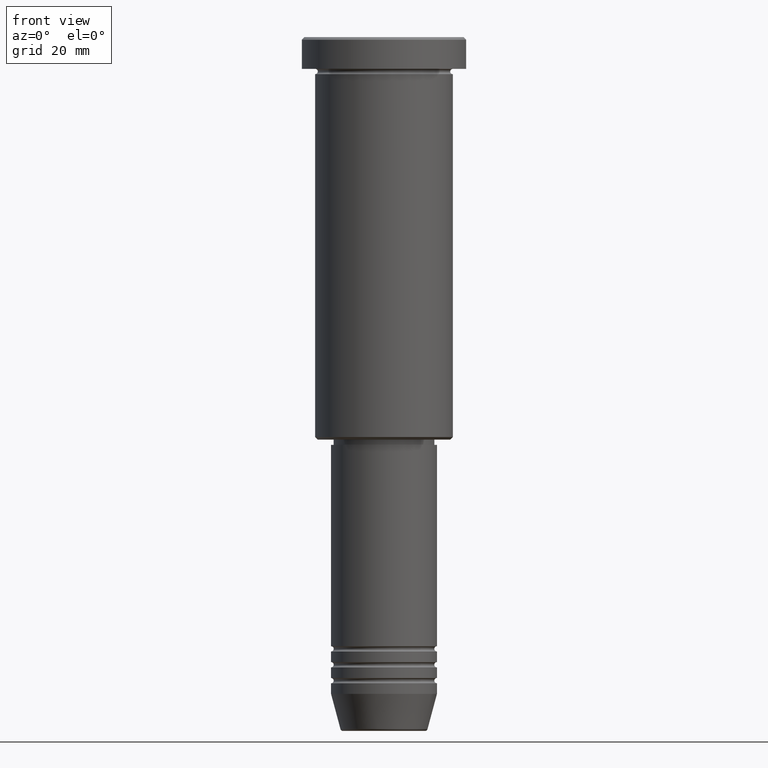
[diagram: clean part render]
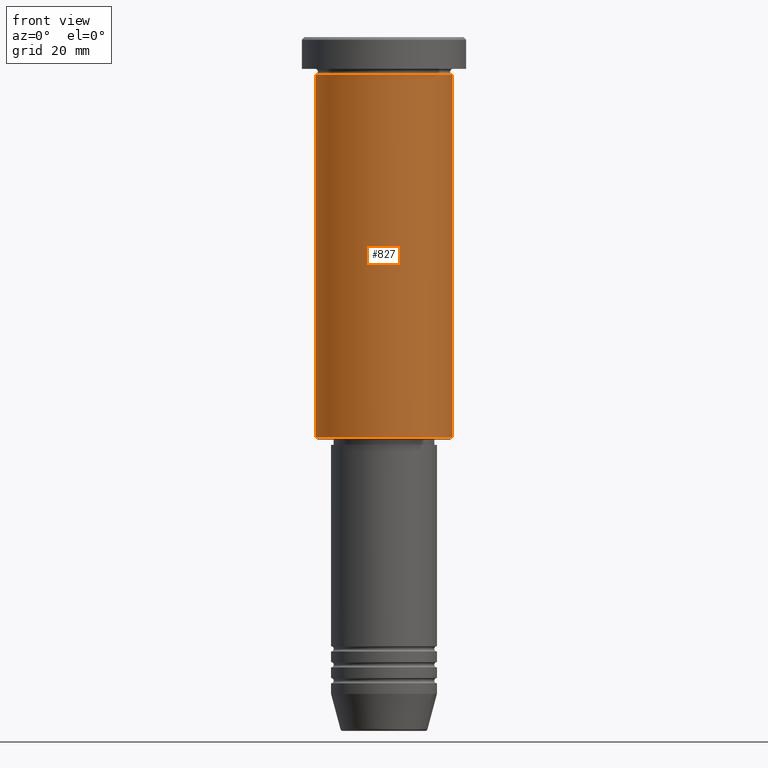
[diagram: same view with one face highlighted and labeled with its STEP entity id]
A machine part, front view. The second image highlights one B-rep face of the part: STEP entity #827.
In plain terms, the highlighted cylindrical surface (partial cylindrical patch) has radius 13 mm, axis along (-0, -0, 1).
Its self-contained STEP definition (entity closure, byte-faithful):
#8 = VECTOR ( 'NONE', #361, 1000.000000000000000 ) ;
#55 = DIRECTION ( 'NONE',  ( -0.000000000000000000, -0.000000000000000000, 1.000000000000000000 ) ) ;
#103 = FACE_OUTER_BOUND ( 'NONE', #419, .T. ) ;
#107 = LINE ( 'NONE', #662, #8 ) ;
#135 = ORIENTED_EDGE ( 'NONE', *, *, #1159, .F. ) ;
#140 = CIRCLE ( 'NONE', #546, 13.00000000000000000 ) ;
#229 = CARTESIAN_POINT ( 'NONE',  ( 13.00000000000000000, 0.000000000000000000, -75.49999999999997158 ) ) ;
#231 = ORIENTED_EDGE ( 'NONE', *, *, #535, .T. ) ;
#276 = DIRECTION ( 'NONE',  ( -0.000000000000000000, -0.000000000000000000, 1.000000000000000000 ) ) ;
#283 = CYLINDRICAL_SURFACE ( 'NONE', #1065, 13.00000000000000000 ) ;
#312 = CIRCLE ( 'NONE', #421, 13.00000000000000000 ) ;
#361 = DIRECTION ( 'NONE',  ( -0.000000000000000000, -0.000000000000000000, 1.000000000000000000 ) ) ;
#371 = VERTEX_POINT ( 'NONE', #229 ) ;
#391 = CARTESIAN_POINT ( 'NONE',  ( -13.00000000000000000, 1.592040838891559095E-15, -75.49999999999997158 ) ) ;
#394 = VERTEX_POINT ( 'NONE', #1029 ) ;
#417 = ORIENTED_EDGE ( 'NONE', *, *, #814, .F. ) ;
#419 = EDGE_LOOP ( 'NONE', ( #417, #231, #441, #135 ) ) ;
#421 = AXIS2_PLACEMENT_3D ( 'NONE', #536, #547, #910 ) ;
#441 = ORIENTED_EDGE ( 'NONE', *, *, #972, .T. ) ;
#522 = VECTOR ( 'NONE', #55, 1000.000000000000000 ) ;
#532 = CARTESIAN_POINT ( 'NONE',  ( 13.00000000000000000, 0.000000000000000000, 0.000000000000000000 ) ) ;
#535 = EDGE_CURVE ( 'NONE', #572, #371, #312, .T. ) ;
#536 = CARTESIAN_POINT ( 'NONE',  ( 0.000000000000000000, 0.000000000000000000, -75.49999999999997158 ) ) ;
#546 = AXIS2_PLACEMENT_3D ( 'NONE', #652, #276, #748 ) ;
#547 = DIRECTION ( 'NONE',  ( -0.000000000000000000, -0.000000000000000000, 1.000000000000000000 ) ) ;
#572 = VERTEX_POINT ( 'NONE', #391 ) ;
#593 = VERTEX_POINT ( 'NONE', #943 ) ;
#652 = CARTESIAN_POINT ( 'NONE',  ( 0.000000000000000000, 0.000000000000000000, -6.999999999999995559 ) ) ;
#654 = DIRECTION ( 'NONE',  ( 1.000000000000000000, 0.000000000000000000, 0.000000000000000000 ) ) ;
#662 = CARTESIAN_POINT ( 'NONE',  ( -13.00000000000000000, 1.592040838891559095E-15, 0.000000000000000000 ) ) ;
#748 = DIRECTION ( 'NONE',  ( 1.000000000000000000, 0.000000000000000000, 0.000000000000000000 ) ) ;
#814 = EDGE_CURVE ( 'NONE', #572, #593, #107, .T. ) ;
#827 = ADVANCED_FACE ( 'NONE', ( #103 ), #283, .T. ) ;
#846 = CARTESIAN_POINT ( 'NONE',  ( 0.000000000000000000, 0.000000000000000000, 0.000000000000000000 ) ) ;
#869 = LINE ( 'NONE', #532, #522 ) ;
#910 = DIRECTION ( 'NONE',  ( -1.000000000000000000, 0.000000000000000000, 0.000000000000000000 ) ) ;
#943 = CARTESIAN_POINT ( 'NONE',  ( -13.00000000000000000, 1.592040838891559095E-15, -6.999999999999995559 ) ) ;
#972 = EDGE_CURVE ( 'NONE', #371, #394, #869, .T. ) ;
#1029 = CARTESIAN_POINT ( 'NONE',  ( 13.00000000000000000, 0.000000000000000000, -6.999999999999995559 ) ) ;
#1065 = AXIS2_PLACEMENT_3D ( 'NONE', #846, #1097, #654 ) ;
#1097 = DIRECTION ( 'NONE',  ( -0.000000000000000000, -0.000000000000000000, 1.000000000000000000 ) ) ;
#1159 = EDGE_CURVE ( 'NONE', #593, #394, #140, .T. ) ;